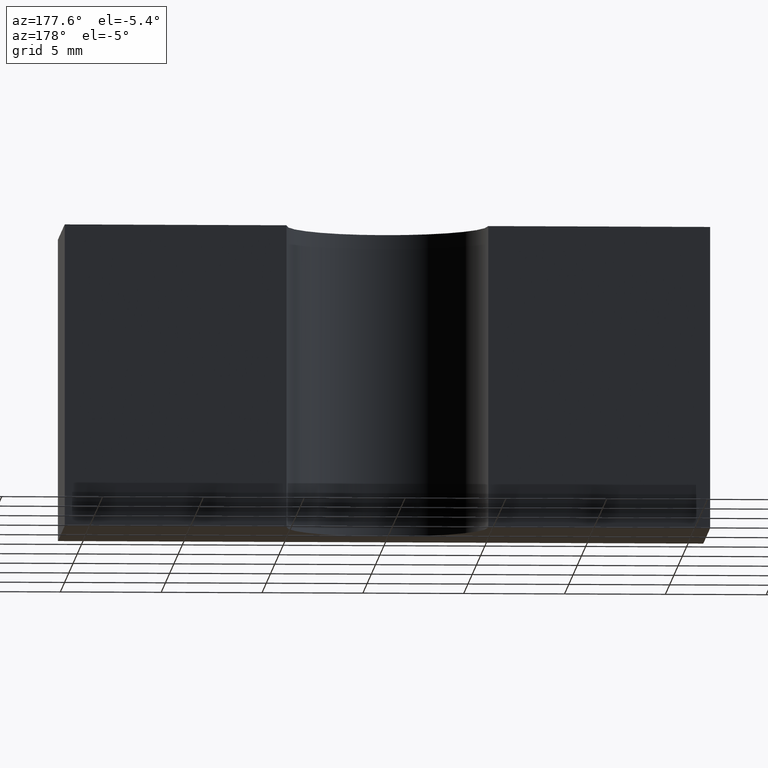
[diagram: clean part render]
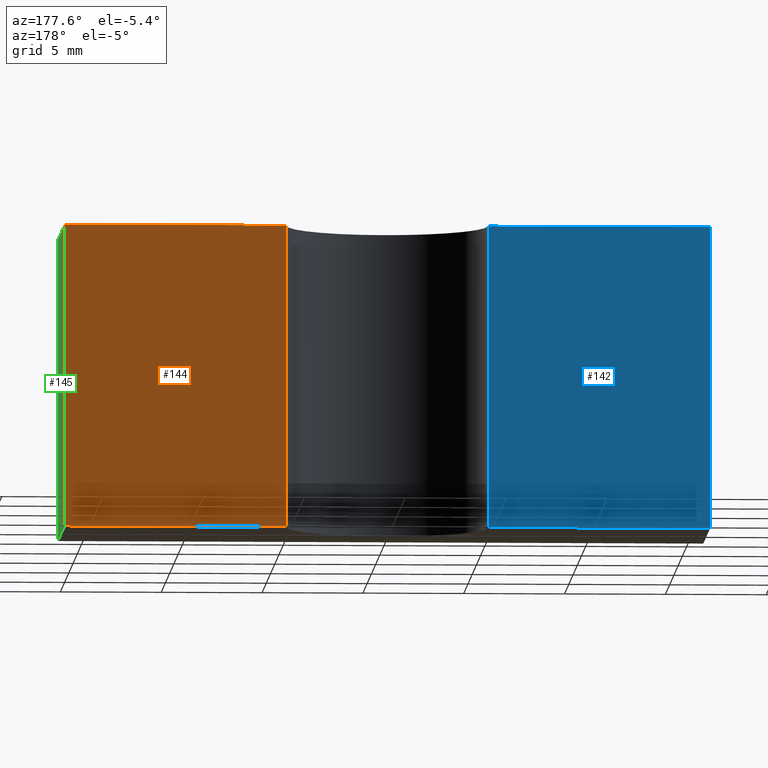
[diagram: same view with three faces highlighted in distinct colors, each labeled with its STEP entity id]
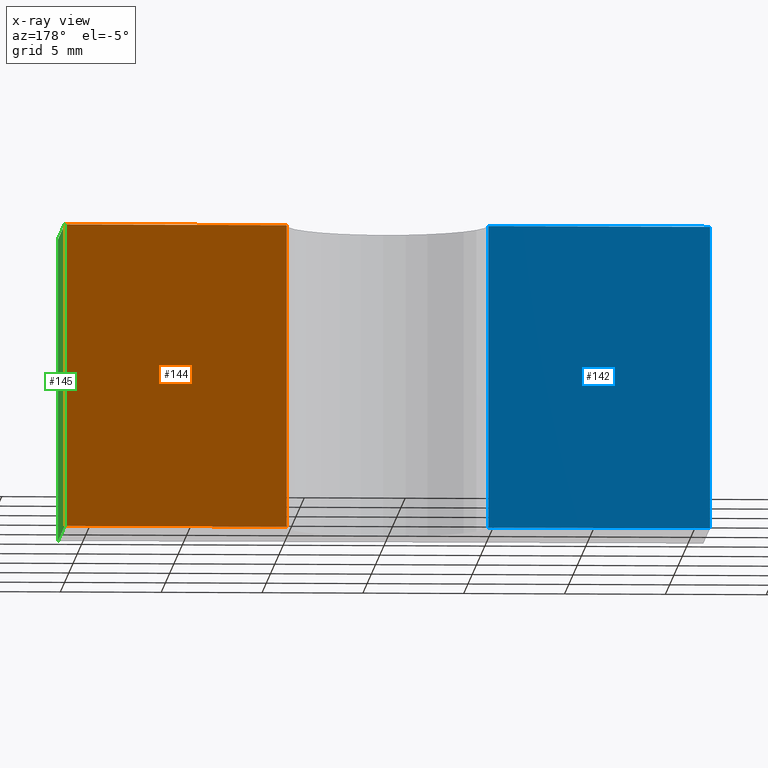
[diagram: x-ray of the same camera — body ghosted, the three highlighted faces saturated]
A machine part, auxiliary view with three faces highlighted in distinct colors.
The next image is the same camera in x-ray (body ghosted, the three faces saturated) — at least one of them is partly hidden behind the body in this view.
Their STEP definitions:

[orange] entity #144 — the highlighted planar face has unit normal (0, 1, 0).
#21=FACE_OUTER_BOUND('',#29,.T.);
#29=EDGE_LOOP('',(#115,#116,#117,#118));
#39=LINE('',#232,#55);
#45=LINE('',#246,#61);
#46=LINE('',#249,#62);
#47=LINE('',#250,#63);
#55=VECTOR('',#191,10.);
#61=VECTOR('',#205,10.);
#62=VECTOR('',#208,10.);
#63=VECTOR('',#209,10.);
#68=VERTEX_POINT('',#222);
#72=VERTEX_POINT('',#230);
#76=VERTEX_POINT('',#244);
#77=VERTEX_POINT('',#248);
#84=EDGE_CURVE('',#68,#72,#39,.T.);
#91=EDGE_CURVE('',#72,#76,#45,.T.);
#92=EDGE_CURVE('',#76,#77,#46,.T.);
#93=EDGE_CURVE('',#68,#77,#47,.T.);
#115=ORIENTED_EDGE('',*,*,#92,.T.);
#116=ORIENTED_EDGE('',*,*,#93,.F.);
#117=ORIENTED_EDGE('',*,*,#84,.T.);
#118=ORIENTED_EDGE('',*,*,#91,.T.);
#136=PLANE('',#177);
#144=ADVANCED_FACE('',(#21),#136,.T.);
#177=AXIS2_PLACEMENT_3D('',#247,#206,#207);
#191=DIRECTION('',(-1.,0.,0.));
#205=DIRECTION('',(0.,0.,1.));
#206=DIRECTION('center_axis',(0.,1.,0.));
#207=DIRECTION('ref_axis',(0.,0.,1.));
#208=DIRECTION('',(1.,0.,0.));
#209=DIRECTION('',(0.,0.,1.));
#222=CARTESIAN_POINT('',(16.,4.,-7.5));
#230=CARTESIAN_POINT('',(5.,4.,-7.5));
#232=CARTESIAN_POINT('',(16.,4.,-7.5));
#244=CARTESIAN_POINT('',(5.,4.,7.5));
#246=CARTESIAN_POINT('',(5.,4.,0.));
#247=CARTESIAN_POINT('Origin',(5.,4.,0.));
#248=CARTESIAN_POINT('',(16.,4.,7.5));
#249=CARTESIAN_POINT('',(16.,4.,7.5));
#250=CARTESIAN_POINT('',(16.,4.,0.));

[blue] entity #142 — the highlighted planar face has unit normal (-0, 1, 0).
#19=FACE_OUTER_BOUND('',#27,.T.);
#27=EDGE_LOOP('',(#107,#108,#109,#110));
#38=LINE('',#229,#54);
#41=LINE('',#237,#57);
#43=LINE('',#241,#59);
#44=LINE('',#242,#60);
#54=VECTOR('',#188,10.);
#57=VECTOR('',#195,10.);
#59=VECTOR('',#199,10.);
#60=VECTOR('',#200,10.);
#70=VERTEX_POINT('',#226);
#71=VERTEX_POINT('',#228);
#74=VERTEX_POINT('',#235);
#75=VERTEX_POINT('',#240);
#82=EDGE_CURVE('',#71,#70,#38,.T.);
#86=EDGE_CURVE('',#70,#74,#41,.T.);
#88=EDGE_CURVE('',#74,#75,#43,.T.);
#89=EDGE_CURVE('',#71,#75,#44,.T.);
#107=ORIENTED_EDGE('',*,*,#88,.T.);
#108=ORIENTED_EDGE('',*,*,#89,.F.);
#109=ORIENTED_EDGE('',*,*,#82,.T.);
#110=ORIENTED_EDGE('',*,*,#86,.T.);
#135=PLANE('',#174);
#142=ADVANCED_FACE('',(#19),#135,.T.);
#174=AXIS2_PLACEMENT_3D('',#239,#197,#198);
#188=DIRECTION('',(-1.,-5.04646829375071E-17,0.));
#195=DIRECTION('',(0.,0.,1.));
#197=DIRECTION('center_axis',(-5.04646829375071E-17,1.,0.));
#198=DIRECTION('ref_axis',(0.,0.,1.));
#199=DIRECTION('',(1.,5.04646829375071E-17,0.));
#200=DIRECTION('',(0.,0.,1.));
#226=CARTESIAN_POINT('',(-16.,4.,-7.5));
#228=CARTESIAN_POINT('',(-5.,4.,-7.5));
#229=CARTESIAN_POINT('',(-5.,4.,-7.5));
#235=CARTESIAN_POINT('',(-16.,4.,7.5));
#237=CARTESIAN_POINT('',(-16.,4.,0.));
#239=CARTESIAN_POINT('Origin',(-16.,4.,0.));
#240=CARTESIAN_POINT('',(-5.,4.,7.5));
#241=CARTESIAN_POINT('',(-5.,4.,7.5));
#242=CARTESIAN_POINT('',(-5.,4.,0.));

[green] entity #145 — the highlighted planar face has unit normal (1, 0, 0).
#22=FACE_OUTER_BOUND('',#30,.T.);
#30=EDGE_LOOP('',(#119,#120,#121,#122));
#35=LINE('',#223,#51);
#47=LINE('',#250,#63);
#48=LINE('',#253,#64);
#49=LINE('',#254,#65);
#51=VECTOR('',#185,10.);
#63=VECTOR('',#209,10.);
#64=VECTOR('',#212,10.);
#65=VECTOR('',#213,10.);
#67=VERTEX_POINT('',#221);
#68=VERTEX_POINT('',#222);
#77=VERTEX_POINT('',#248);
#78=VERTEX_POINT('',#252);
#79=EDGE_CURVE('',#67,#68,#35,.T.);
#93=EDGE_CURVE('',#68,#77,#47,.T.);
#94=EDGE_CURVE('',#77,#78,#48,.T.);
#95=EDGE_CURVE('',#67,#78,#49,.T.);
#119=ORIENTED_EDGE('',*,*,#94,.T.);
#120=ORIENTED_EDGE('',*,*,#95,.F.);
#121=ORIENTED_EDGE('',*,*,#79,.T.);
#122=ORIENTED_EDGE('',*,*,#93,.T.);
#137=PLANE('',#178);
#145=ADVANCED_FACE('',(#22),#137,.T.);
#178=AXIS2_PLACEMENT_3D('',#251,#210,#211);
#185=DIRECTION('',(0.,1.,0.));
#209=DIRECTION('',(0.,0.,1.));
#210=DIRECTION('center_axis',(1.,0.,0.));
#211=DIRECTION('ref_axis',(0.,0.,-1.));
#212=DIRECTION('',(0.,-1.,0.));
#213=DIRECTION('',(0.,0.,1.));
#221=CARTESIAN_POINT('',(16.,-3.99999999999999,-7.5));
#222=CARTESIAN_POINT('',(16.,4.,-7.5));
#223=CARTESIAN_POINT('',(16.,-3.99999999999999,-7.5));
#248=CARTESIAN_POINT('',(16.,4.,7.5));
#250=CARTESIAN_POINT('',(16.,4.,0.));
#251=CARTESIAN_POINT('Origin',(16.,4.,0.));
#252=CARTESIAN_POINT('',(16.,-3.99999999999999,7.5));
#253=CARTESIAN_POINT('',(16.,-3.99999999999999,7.5));
#254=CARTESIAN_POINT('',(16.,-3.99999999999999,0.));